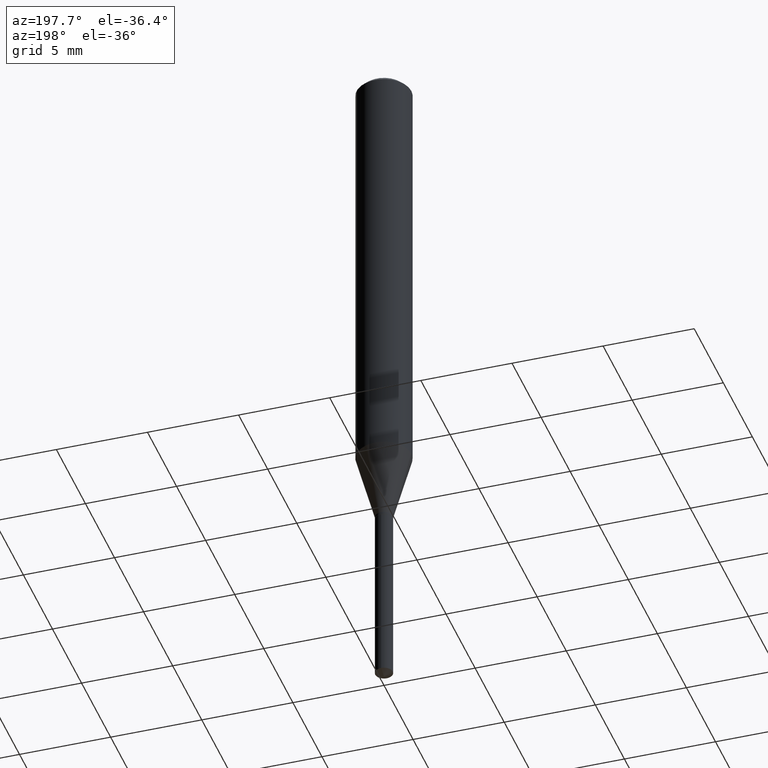
[diagram: clean part render]
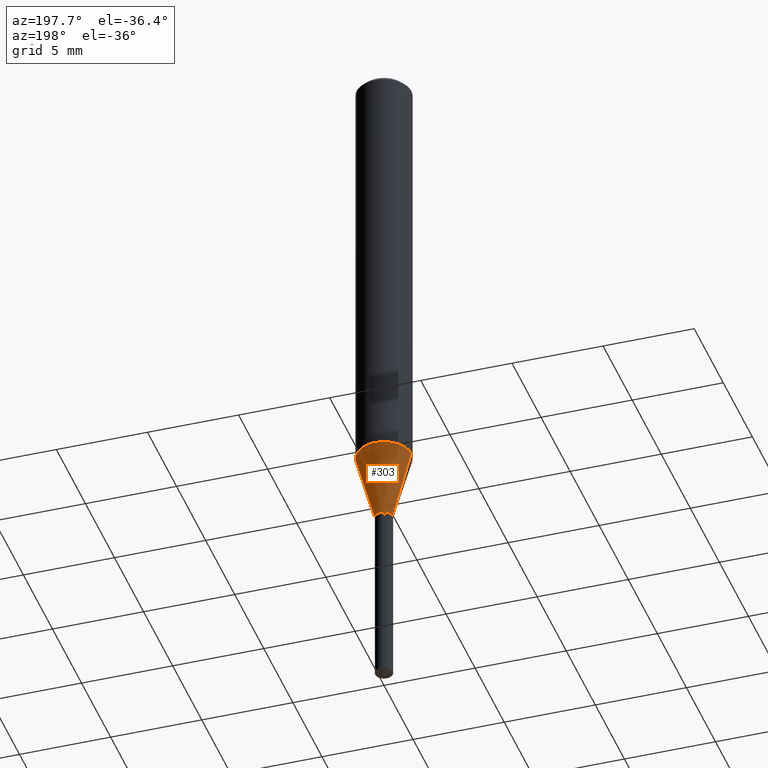
[diagram: same view with one face highlighted and labeled with its STEP entity id]
A machine part, auxiliary view. The second image highlights one B-rep face of the part: STEP entity #303.
In plain terms, the highlighted conical surface has half-angle 15 deg.
Its self-contained STEP definition (entity closure, byte-faithful):
#20 = EDGE_CURVE ( 'NONE', #89, #130, #477, .T. ) ;
#42 = LINE ( 'NONE', #347, #135 ) ;
#50 = ORIENTED_EDGE ( 'NONE', *, *, #20, .T. ) ;
#59 = CIRCLE ( 'NONE', #70, 0.05905000000000011628 ) ;
#70 = AXIS2_PLACEMENT_3D ( 'NONE', #108, #144, #417 ) ;
#89 = VERTEX_POINT ( 'NONE', #452 ) ;
#108 = CARTESIAN_POINT ( 'NONE',  ( 2.296192890779115262E-29, -3.278354893860230512E-15, -0.9389581600761093272 ) ) ;
#110 = EDGE_CURVE ( 'NONE', #130, #285, #454, .T. ) ;
#117 = CARTESIAN_POINT ( 'NONE',  ( -0.01889999999999996197, -3.676310156154750318E-15, -1.088799999999999768 ) ) ;
#127 = EDGE_CURVE ( 'NONE', #89, #220, #42, .T. ) ;
#130 = VERTEX_POINT ( 'NONE', #117 ) ;
#135 = VECTOR ( 'NONE', #198, 39.37007874015747433 ) ;
#144 = DIRECTION ( 'NONE',  ( -2.445468806185136597E-29, 3.491481338843145583E-15, 1.000000000000000000 ) ) ;
#158 = CARTESIAN_POINT ( 'NONE',  ( 2.662626436174376212E-29, -3.801524881732416844E-15, -1.088799999999999768 ) ) ;
#198 = DIRECTION ( 'NONE',  ( 0.2588190451025214611, 1.565188264969621573E-15, 0.9659258262890682012 ) ) ;
#220 = VERTEX_POINT ( 'NONE', #276 ) ;
#223 = DIRECTION ( 'NONE',  ( 1.000000000000000000, -6.982962677686258822E-15, 0.000000000000000000 ) ) ;
#236 = AXIS2_PLACEMENT_3D ( 'NONE', #158, #480, #223 ) ;
#238 = CARTESIAN_POINT ( 'NONE',  ( -0.01889999999999996197, -3.667232304673757710E-15, -1.088799999999999768 ) ) ;
#244 = ORIENTED_EDGE ( 'NONE', *, *, #110, .T. ) ;
#276 = CARTESIAN_POINT ( 'NONE',  ( 0.05905000000000011628, -3.690698839977605827E-15, -0.9389581600761093272 ) ) ;
#277 = EDGE_LOOP ( 'NONE', ( #50, #244, #399, #431 ) ) ;
#285 = VERTEX_POINT ( 'NONE', #363 ) ;
#291 = DIRECTION ( 'NONE',  ( 1.000000000000000000, -6.982962677686258822E-15, 0.000000000000000000 ) ) ;
#303 = ADVANCED_FACE ( 'NONE', ( #323 ), #367, .T. ) ;
#323 = FACE_OUTER_BOUND ( 'NONE', #277, .T. ) ;
#347 = CARTESIAN_POINT ( 'NONE',  ( 0.01889999999999996197, -3.933502876340686458E-15, -1.088799999999999768 ) ) ;
#363 = CARTESIAN_POINT ( 'NONE',  ( -0.05905000000000011628, -2.858779408393891019E-15, -0.9389581600761093272 ) ) ;
#367 = CONICAL_SURFACE ( 'NONE', #426, 0.01889999999999996197, 0.2617993877991501295 ) ;
#371 = CARTESIAN_POINT ( 'NONE',  ( 2.662626436174376212E-29, -3.801524881732416844E-15, -1.088799999999999768 ) ) ;
#399 = ORIENTED_EDGE ( 'NONE', *, *, #429, .F. ) ;
#400 = VECTOR ( 'NONE', #444, 39.37007874015747433 ) ;
#417 = DIRECTION ( 'NONE',  ( 1.000000000000000000, -6.982962677686266711E-15, 0.000000000000000000 ) ) ;
#426 = AXIS2_PLACEMENT_3D ( 'NONE', #371, #468, #291 ) ;
#429 = EDGE_CURVE ( 'NONE', #220, #285, #59, .T. ) ;
#431 = ORIENTED_EDGE ( 'NONE', *, *, #127, .F. ) ;
#444 = DIRECTION ( 'NONE',  ( -0.2588190451025214611, 5.211531920934551042E-15, 0.9659258262890682012 ) ) ;
#452 = CARTESIAN_POINT ( 'NONE',  ( 0.01889999999999996197, -3.933502876340686458E-15, -1.088799999999999768 ) ) ;
#454 = LINE ( 'NONE', #238, #400 ) ;
#468 = DIRECTION ( 'NONE',  ( -2.445468806185136597E-29, 3.491481338843145583E-15, 1.000000000000000000 ) ) ;
#477 = CIRCLE ( 'NONE', #236, 0.01889999999999996197 ) ;
#480 = DIRECTION ( 'NONE',  ( -2.445468806185136597E-29, 3.491481338843145583E-15, 1.000000000000000000 ) ) ;